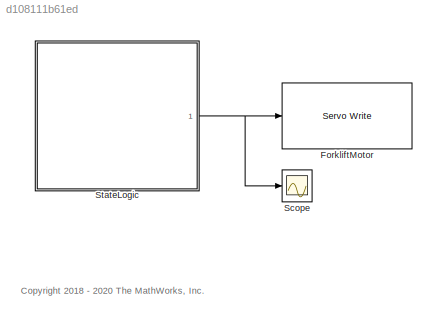
MODEL slx_d108111b61ed
KIND model
CONFIG AbsTol = auto
CONFIG EnableMultiTasking = on
CONFIG FixedStep = TS
CONFIG MaxStep = auto
CONFIG MinStep = auto
CONFIG RelTol = 1e-3
CONFIG SampleTimeConstraint = Unconstrained
CONFIG Solver = FixedStepAuto
CONFIG SolverName = FixedStepAuto
CONFIG StartTime = 0.0
CONFIG StopTime = 30
WORKSPACE source: mxarray member
WORKSPACE TS = 0.01
BLOCK [Reference] ForkliftMotor  REF=arduinomotorcarrierlib/Servo Write
  Ports = [1]
  SourceBlock = arduinomotorcarrierlib/Servo Write
  SourceProductName = Simulink Support for Arduino MKR Motor Carrier
  SourceType = MKR Servo Motor
BLOCK [Scope] Scope
  Floating = off
  NumInputPorts = 1
  Ports = [1]
  ScopeSpecificationString = Simulink.scopes.TimeScopeBlockCfg('CurrentConfiguration', extmgr.ConfigurationSet(extmgr.Configuration('Core','General UI',true),extmgr.Configuration('Core','Source UI',true),extmgr.Configuration('Sources','WiredSimulink',true),extmgr.Configuration('Visuals','Time Domain',true,'SerializedDisplays',{struct('MinYLimReal','-22.5625','MaxYLimReal','203.0625','YLabelReal','','MinYLimMag','0.00000','Max...<+1361ch>
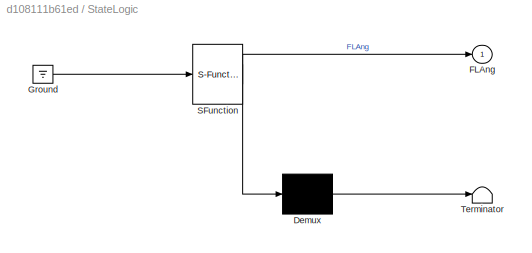
BLOCK [SubSystem] StateLogic
  ErrorFcn = Stateflow.Translate.translate
  PermitHierarchicalResolution = ExplicitOnly
  Ports = [0, 1]
  RequestExecContextInheritance = off
  SFBlockType = Chart
  TreatAsAtomicUnit = on
BLOCK [Demux] StateLogic/ Demux 
  Outputs = 1
  Ports = [1, 1]
BLOCK [Ground] StateLogic/ Ground 
BLOCK [S-Function] StateLogic/ SFunction 
  EnableBusSupport = off
  FunctionName = sf_sfun
  PortCounts = [1 2]
  Ports = [1, 2]
  SFcnIsStateOwnerBlock = off
  SFunctionDeploymentMode = off
  Tag = Stateflow S-Function 3
BLOCK [Terminator] StateLogic/ Terminator 
BLOCK [Outport] StateLogic/FLAng
  VectorParamsAs1DForOutWhenUnconnected = off
ANNOTATION (root): <copyright redacted>
NET StateLogic:1 -> ForkliftMotor:1, Scope:1
note: NET lines group one-source signal fan-out (src -> all destinations, sorted); 1:1 wires keep LINE
CHART StateLogic states=4 transitions=5
  STATE_LABEL 'Start\nentry:\nFLAng = 125;\n'
  STATE_LABEL 'DropForklift\nentry, during, exit:\nFLAng = FLAng-0.5;\n'
  STATE_LABEL 'LiftForklift\nen, du, ex:\nFLAng = FLAng+0.5;\n'
  STATE_LABEL 'DoNothing1\nen, du, ex:\n'
CHART  states=0 transitions=0
